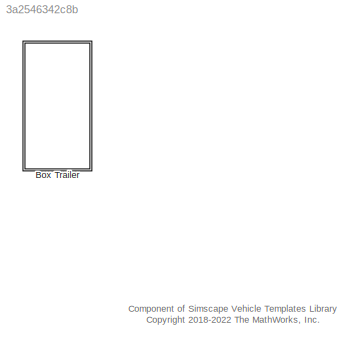
MODEL slx_3a2546342c8b
KIND library
CONFIG AbsTol = auto
CONFIG EnableMultiTasking = off
CONFIG FixedStep = auto
CONFIG MaxStep = auto
CONFIG MinStep = auto
CONFIG RelTol = 1e-3
CONFIG SampleTimeConstraint = Unconstrained
CONFIG SolverName = VariableStepAuto
CONFIG StartTime = 0.0
CONFIG StopTime = 10.0
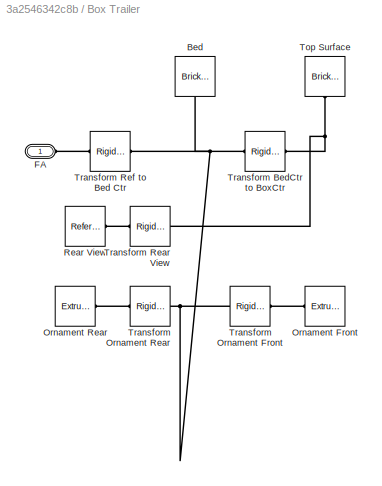
BLOCK [SubSystem] Box Trailer
  Ports = [0, 0, 0, 0, 0, 1]
  RequestExecContextInheritance = off
  VariantControl = Sedan
BLOCK [Reference] Box Trailer/Bed  REF=sm_lib/Body Elements/Brick Solid
  NameLocation = left
  Ports = [0, 0, 0, 0, 0, 0, 1]
  SourceBlock = sm_lib/Body Elements/Brick Solid
  SourceProductBaseCode = MS
  SourceType = Brick Solid
BLOCK [PMIOPort] Box Trailer/FA
  Side = Left
BLOCK [Reference] Box Trailer/Ornament Front  REF=sm_lib/Body Elements/Extruded Solid
  Ports = [0, 0, 0, 0, 0, 0, 1]
  SourceBlock = sm_lib/Body Elements/Extruded Solid
  SourceProductBaseCode = MS
  SourceType = Extruded Solid
BLOCK [Reference] Box Trailer/Ornament Rear  REF=sm_lib/Body Elements/Extruded Solid
  Ports = [0, 0, 0, 0, 0, 0, 1]
  SourceBlock = sm_lib/Body Elements/Extruded Solid
  SourceProductBaseCode = MS
  SourceType = Extruded Solid
BLOCK [Reference] Box Trailer/Rear View  REF=sm_lib/Frames and
Transforms/Reference
Frame
  Ports = [0, 0, 0, 0, 0, 0, 1]
  SourceBlock = sm_lib/Frames and\nTransforms/Reference\nFrame
  SourceProductBaseCode = MS
  SourceType = Reference\nFrame
BLOCK [Reference] Box Trailer/Top Surface  REF=sm_lib/Body Elements/Brick Solid
  NameLocation = right
  Ports = [0, 0, 0, 0, 0, 0, 1]
  SourceBlock = sm_lib/Body Elements/Brick Solid
  SourceProductBaseCode = MS
  SourceType = Brick Solid
BLOCK [Reference] Box Trailer/Transform BedCtr to BoxCtr  REF=sm_lib/Frames and
Transforms/Rigid
Transform
  Ports = [0, 0, 0, 0, 0, 1, 1]
  SourceBlock = sm_lib/Frames and\nTransforms/Rigid\nTransform
  SourceProductBaseCode = MS
  SourceType = Rigid\nTransform
BLOCK [Reference] Box Trailer/Transform Ornament Front  REF=sm_lib/Frames and
Transforms/Rigid
Transform
  Ports = [0, 0, 0, 0, 0, 1, 1]
  SourceBlock = sm_lib/Frames and\nTransforms/Rigid\nTransform
  SourceProductBaseCode = MS
  SourceType = Rigid\nTransform
BLOCK [Reference] Box Trailer/Transform Ornament Rear  REF=sm_lib/Frames and
Transforms/Rigid
Transform
  Ports = [0, 0, 0, 0, 0, 1, 1]
  SourceBlock = sm_lib/Frames and\nTransforms/Rigid\nTransform
  SourceProductBaseCode = MS
  SourceType = Rigid\nTransform
BLOCK [Reference] Box Trailer/Transform Rear View  REF=sm_lib/Frames and
Transforms/Rigid
Transform
  Ports = [0, 0, 0, 0, 0, 1, 1]
  SourceBlock = sm_lib/Frames and\nTransforms/Rigid\nTransform
  SourceProductBaseCode = MS
  SourceType = Rigid\nTransform
BLOCK [Reference] Box Trailer/Transform Ref to Bed Ctr  REF=sm_lib/Frames and
Transforms/Rigid
Transform
  Ports = [0, 0, 0, 0, 0, 1, 1]
  SourceBlock = sm_lib/Frames and\nTransforms/Rigid\nTransform
  SourceProductBaseCode = MS
  SourceType = Rigid\nTransform
ANNOTATION (root): Component of Simscape Vehicle Templates Library <copyright redacted>
PNET net1: Box Trailer/Bed:RConn1 -- Box Trailer/Transform BedCtr to BoxCtr:LConn1 -- Box Trailer/Transform Ornament Front:LConn1 -- Box Trailer/Transform Ornament Rear:LConn1 -- Box Trailer/Transform Ref to Bed Ctr:RConn1
PLINE Box Trailer/FA:RConn1 -- Box Trailer/Transform Ref to Bed Ctr:LConn1
PLINE Box Trailer/Ornament Front:RConn1 -- Box Trailer/Transform Ornament Front:RConn1
PLINE Box Trailer/Ornament Rear:RConn1 -- Box Trailer/Transform Ornament Rear:RConn1
PLINE Box Trailer/Rear View:RConn1 -- Box Trailer/Transform Rear View:RConn1
PNET net2: Box Trailer/Top Surface:RConn1 -- Box Trailer/Transform BedCtr to BoxCtr:RConn1 -- Box Trailer/Transform Rear View:LConn1
note: PNET lines group multi-terminal physical nets as a canonical sorted terminal list (undirected conserving connections); 2-terminal nets keep the pairwise PLINE form
